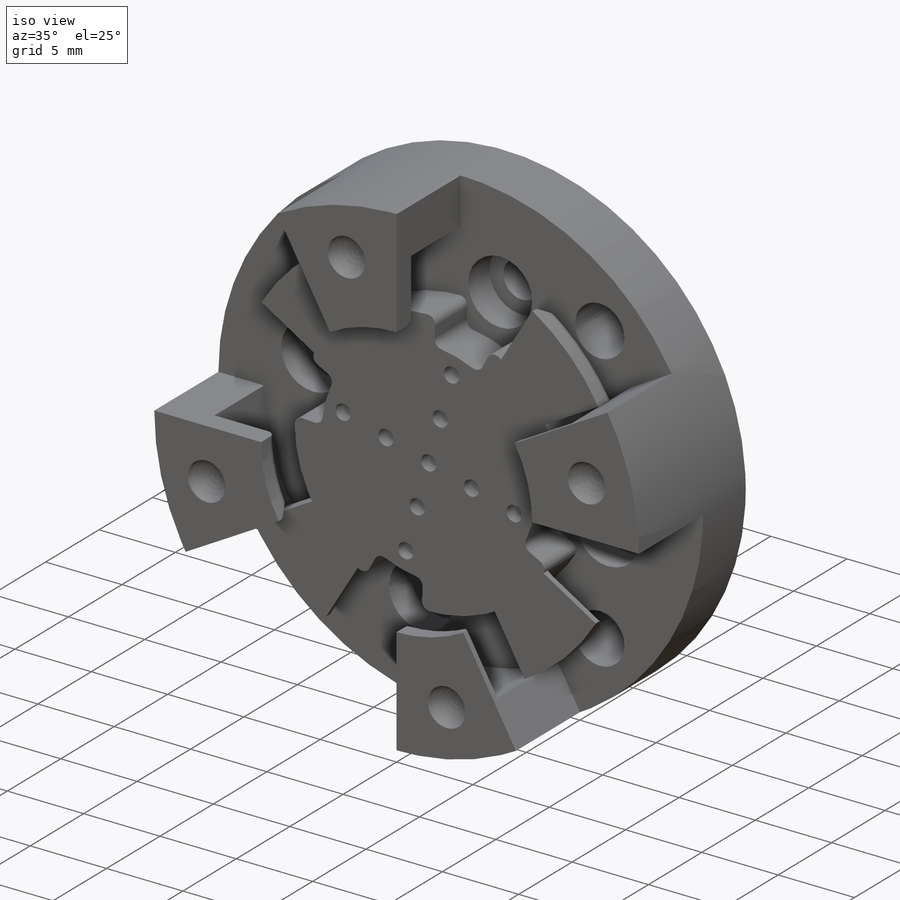
[diagram: iso view]
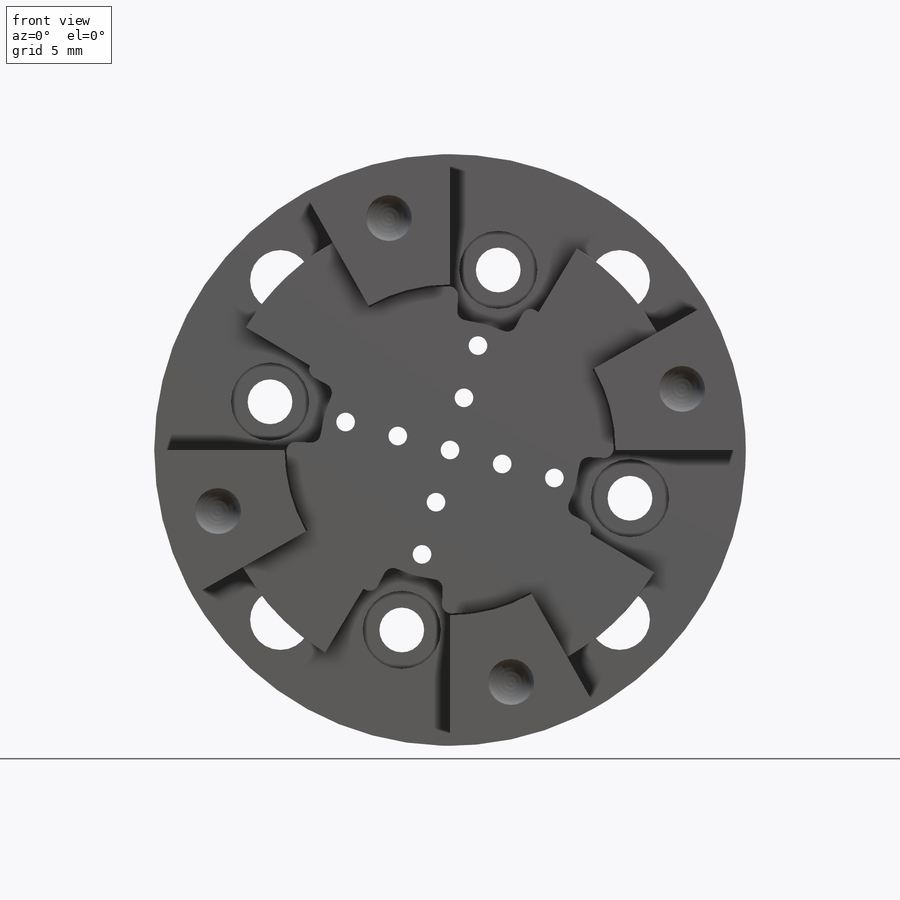
[diagram: front view]
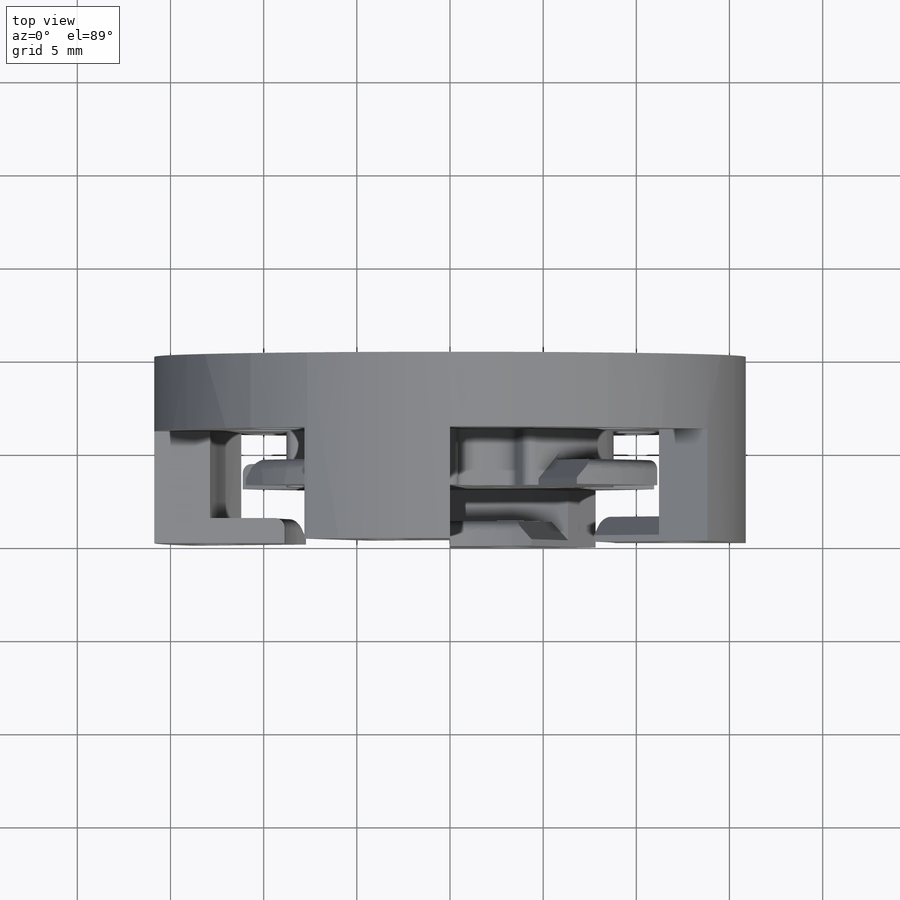
[diagram: top view]
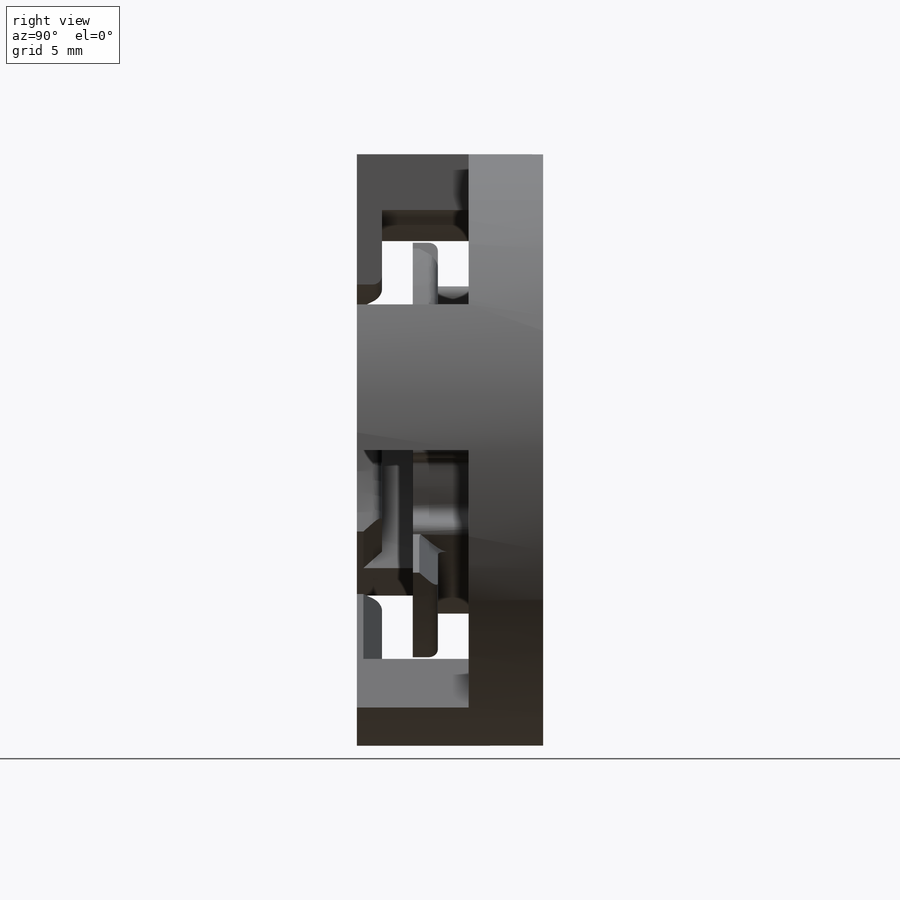
[diagram: right view]
SOLIDWORKS PART (.sldprt)
format: sldprt  version: not decoded by parser v0  size: 814,592 bytes
history: native  units: mm
features: sketch x19, cut_extrude x11, pattern_circular x6, plane x4, extrude x4, fillet x4, cut_revolve x3, chamfer x2, material x1 (+9 scaffold rows collapsed)
feature tree (63):
  scaffold x9  (default folders/planes/origin — collapsed)
  material  "材质 <未指定>"
  plane  "前视基准面"
  plane  "上视基准面"
  plane  "右视基准面"
  sketch  "草图2"  dims[D1=31.75mm]
  extrude  "凸台-拉伸1"  Depth=10mm
  sketch  "草图3"  dims[c1.D3=17.76mm c2.D3=17.76mm c2.D5=31.75mm c3.D3=17.76mm c3.D1=31.75mm c4.D1=29.5deg c4.D2=4.0 c4.D4=4.0]
  cut_extrude  "切除-拉伸1"  Depth=6mm
  sketch  "草图5"  dims[D1=4.65mm D2=3.0mm D3=12.88mm]
  cut_revolve  "切除-旋转1"  Angle=360deg
  sketch  "草图6"  dims[c1.D1=17.56mm c1.D2=25.56mm c2.D1=8.78mm c2.D7=12.78mm c2.D8=12.78mm c2.D9=12.78mm c3.D8=12.78mm c3.D7=12.78mm c3.D2=25.56mm c3.D5=12.78mm c3.D3=~13.748153mm c4.D3=30.0deg c5.D3=4.0mm c6.D3=29.5deg c6.D4=4.0mm c7.D4=29.5deg c7.D5=4.0mm c8.D5=29.5deg c8.D6=4.0mm c9.D6=29.5deg c9.D5=4.0mm c10.D5=29.5deg c10.D6=4.0mm c11.D6=29.5deg c12.D6=4.0mm]
  extrude  "凸台-拉伸2"  Depth=3mm
  sketch  "草图17"  dims[c1.D1=~2.009005mm c2.D1=90.0deg c3.D1=1.65mm]
  cut_revolve  "切除-旋转7"  Angle=360deg
  sketch  "草图8"  dims[D1=11.5mm]
  cut_extrude  "切除-拉伸2"  Depth=8mm
  sketch  "草图9"  dims[c1.D1=20.0mm c1.D3=4.2mm c1.D2=6.995mm c2.D2=75.0deg c2.D4=10.0mm c3.D4=15.0deg c4.D4=~9.659258mm]
  cut_extrude  "切除-拉伸4"  Depth=2mm
  sketch  "草图18"  dims[D1=~1.193443mm]
  cut_extrude  "切除-拉伸5"  Depth=3mm
  pattern_circular  "阵列(圆周)7"  Count=4 Angle=90deg
  sketch  "草图11"  dims[c1.D1=~27.600855mm c1.D3=3.25mm c2.D1=3.0mm c2.D2=9.104mm c3.D2=15.0deg c4.D2=12.875mm c5.D2=45.0deg]
  cut_extrude  "切除-拉伸3"  Depth=8mm
  pattern_circular  "阵列(圆周)5"  Count=4 Angle=90deg
  plane  "基准面1"
  sketch  "草图13"  dims[c1.D1=3.0mm c1.D2=~3.332295mm c2.D2=15.0deg c3.D2=12.875mm c4.D2=15.0deg c5.D2=~2.279057mm c6.D2=15.0deg]
  sketch  "草图14"  dims[D1=1.25mm D2=0.2mm]
  cut_revolve  "切除-旋转3"  Angle=360deg
  pattern_circular  "阵列(圆周)6"  Count=4 Angle=360deg
  fillet  "圆角2"  Radius=0.5mm
  fillet  "圆角3"  Radius=0.5mm
  fillet  "圆角4"  Radius=0.5mm
  sketch  "草图19"  dims[c1.D1=8.78mm c1.D2=7.0mm c1.D4=0.5mm c1.D3=2.28mm c2.D3=~2.645163deg c3.D3=2.28mm c4.D3=31.0deg c4.D4=2.28mm c5.D4=3.0deg c5.D5=8.78mm c6.D5=3.0deg c6.D3=~8.767967mm c7.D3=25.0deg]
  cut_extrude  "切除-拉伸6"  [1 undecoded]
  fillet  "圆角5"  Radius=0.5mm
  pattern_circular  "阵列(圆周)8"  Count=4 Angle=360deg
  sketch  "草图20"  dims[D1=9.6mm D2=11.5mm]
  extrude  "凸台-拉伸3"  [1 undecoded]
  sketch  "草图21"  dims[c1.D1=~13.977897mm c1.D2=1.0mm c1.D3=5.8mm c1.D4=11.6mm c2.D1=1.0mm c2.D5=1.0mm c2.D6=0.25mm c3.D1=~17.768467mm c4.D1=75.0deg c5.D1=~17.768467mm]
  cut_extrude  "切除-拉伸7"  Depth=0.8mm
  cut_extrude  "切除-拉伸8"  [1 undecoded]
  sketch  "草图21<3>"  dims[D1=0.8mm]
  pattern_circular  "阵列(圆周)9"  Count=4 Angle=90deg
  sketch  "草图22"  dims[D1=1.58mm D2=1.58mm D3=1.58mm]
  cut_extrude  "切除-拉伸10"  Depth=4mm
  sketch  "草图23"  dims[D1=14.0mm]
  cut_extrude  "切除-拉伸11"  Depth=2.9mm
  cut_extrude  "切除-拉伸12"  [1 undecoded]
  sketch  "草图22<4>"
  pattern_circular  "阵列(圆周)11"  Count=4 Angle=360deg
  sketch  "草图24"  dims[D1=2.6mm D2=4.0mm D3=8.2mm D4=9.7mm]
  extrude  "凸台-拉伸4"  Depth=2mm
  chamfer  "倒角1"  Distance=0.1mm Angle=45deg
  chamfer  "倒角2"  Distance=1mm Angle=45deg
decode coverage: 44 of 49 modeling features carry decoded parameters
note: ~ marks probable driven/reference dimensions
note: 4 parameter values undecoded
summary: no parameter record found for 4 features
note: suppression state not decoded; provenance and decode notes live in map.json
